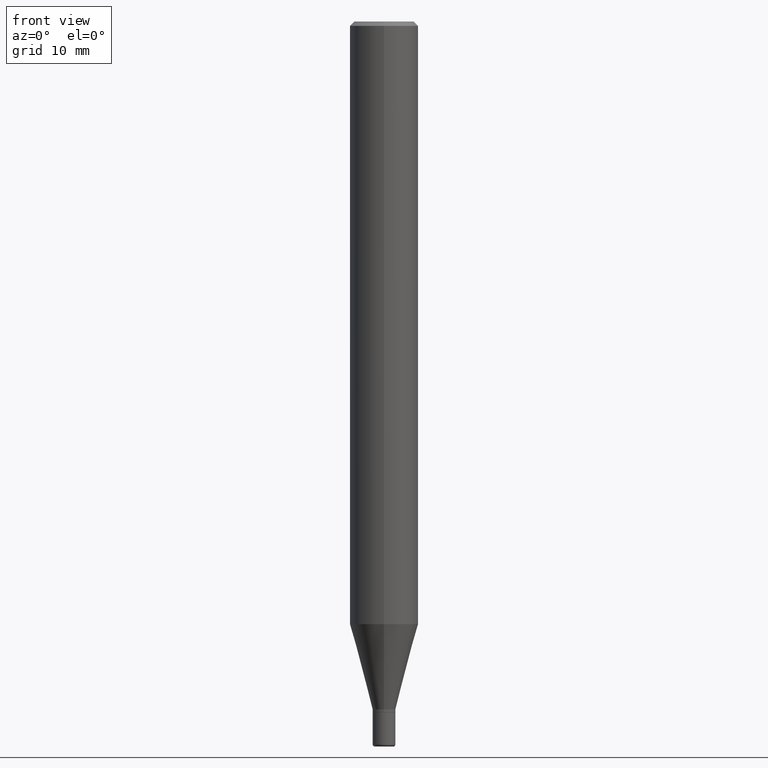
[diagram: clean part render]
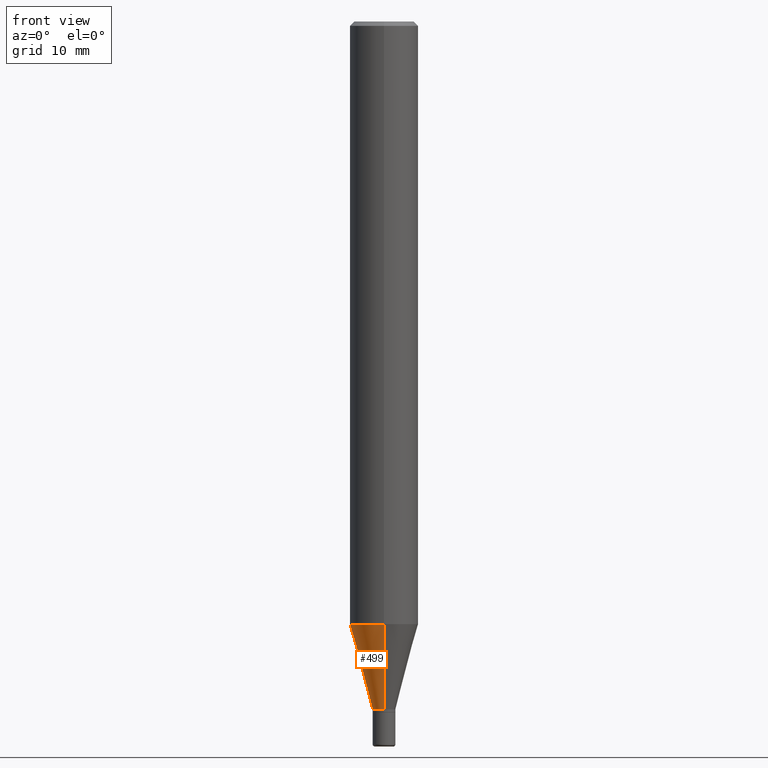
[diagram: same view with one face highlighted and labeled with its STEP entity id]
A machine part, front view. The second image highlights one B-rep face of the part: STEP entity #499.
In plain terms, the highlighted conical surface has half-angle 15 deg.
Its self-contained STEP definition (entity closure, byte-faithful):
#2 = LINE ( 'NONE', #292, #290 ) ;
#5 = ORIENTED_EDGE ( 'NONE', *, *, #340, .T. ) ;
#9 = CIRCLE ( 'NONE', #506, 0.03935000000000007242 ) ;
#15 = VERTEX_POINT ( 'NONE', #66 ) ;
#19 = CONICAL_SURFACE ( 'NONE', #445, 0.03935000000000007242, 0.2617993877991495189 ) ;
#21 = VECTOR ( 'NONE', #356, 39.37007874015748854 ) ;
#35 = DIRECTION ( 'NONE',  ( -2.445160199248264608E-29, 3.491923281541562351E-15, 1.000000000000000000 ) ) ;
#36 = DIRECTION ( 'NONE',  ( -2.445160199248264608E-29, 3.491923281541562351E-15, 1.000000000000000000 ) ) ;
#41 = CARTESIAN_POINT ( 'NONE',  ( 2.795985665216578697E-16, 0.03934999999999178738, -2.371900000000000563 ) ) ;
#48 = VERTEX_POINT ( 'NONE', #262 ) ;
#66 = CARTESIAN_POINT ( 'NONE',  ( 8.391509709327291772E-16, 0.1180999999999927802, -2.078000998903951846 ) ) ;
#67 = ORIENTED_EDGE ( 'NONE', *, *, #517, .T. ) ;
#83 = LINE ( 'NONE', #41, #21 ) ;
#90 = EDGE_CURVE ( 'NONE', #48, #15, #83, .T. ) ;
#101 = DIRECTION ( 'NONE',  ( -2.445160199248264608E-29, 3.491923281541562351E-15, 1.000000000000000000 ) ) ;
#129 = ORIENTED_EDGE ( 'NONE', *, *, #192, .F. ) ;
#187 = AXIS2_PLACEMENT_3D ( 'NONE', #345, #101, #335 ) ;
#191 = VERTEX_POINT ( 'NONE', #295 ) ;
#192 = EDGE_CURVE ( 'NONE', #15, #191, #308, .T. ) ;
#198 = DIRECTION ( 'NONE',  ( -6.982962677686264344E-15, -1.000000000000000000, 6.942434545525433679E-15 ) ) ;
#208 = VERTEX_POINT ( 'NONE', #218 ) ;
#218 = CARTESIAN_POINT ( 'NONE',  ( -2.747795813668970342E-16, -0.03935000000000835052, -2.371900000000000119 ) ) ;
#236 = CARTESIAN_POINT ( 'NONE',  ( 5.799675476596958470E-29, -8.282492831488431921E-15, -2.371900000000000119 ) ) ;
#255 = DIRECTION ( 'NONE',  ( -1.807323732225324617E-15, -0.2588190451025174088, 0.9659258262890690894 ) ) ;
#262 = CARTESIAN_POINT ( 'NONE',  ( 5.593747687271934248E-16, 0.03934999999999178738, -2.371900000000000563 ) ) ;
#290 = VECTOR ( 'NONE', #255, 39.37007874015748854 ) ;
#292 = CARTESIAN_POINT ( 'NONE',  ( -2.747795813668970342E-16, -0.03935000000000835052, -2.371900000000000119 ) ) ;
#295 = CARTESIAN_POINT ( 'NONE',  ( -8.246878922346967894E-16, -0.1181000000000071992, -2.078000998903951402 ) ) ;
#308 = CIRCLE ( 'NONE', #187, 0.1180999999999999966 ) ;
#314 = FACE_OUTER_BOUND ( 'NONE', #331, .T. ) ;
#331 = EDGE_LOOP ( 'NONE', ( #487, #5, #67, #129 ) ) ;
#335 = DIRECTION ( 'NONE',  ( -6.982962677686265922E-15, -1.000000000000000000, 4.626330217890369336E-15 ) ) ;
#340 = EDGE_CURVE ( 'NONE', #48, #208, #9, .T. ) ;
#345 = CARTESIAN_POINT ( 'NONE',  ( 5.081045336518078348E-29, -7.256220067139329431E-15, -2.078000998903951402 ) ) ;
#356 = DIRECTION ( 'NONE',  ( 1.839019923739594793E-15, 0.2588190451025241812, 0.9659258262890673130 ) ) ;
#390 = CARTESIAN_POINT ( 'NONE',  ( 5.799675476596958470E-29, -8.282492831488431921E-15, -2.371900000000000119 ) ) ;
#445 = AXIS2_PLACEMENT_3D ( 'NONE', #236, #35, #198 ) ;
#471 = DIRECTION ( 'NONE',  ( -6.982962677686264344E-15, -1.000000000000000000, 6.942434545525433679E-15 ) ) ;
#487 = ORIENTED_EDGE ( 'NONE', *, *, #90, .F. ) ;
#499 = ADVANCED_FACE ( 'NONE', ( #314 ), #19, .T. ) ;
#506 = AXIS2_PLACEMENT_3D ( 'NONE', #390, #36, #471 ) ;
#517 = EDGE_CURVE ( 'NONE', #208, #191, #2, .T. ) ;